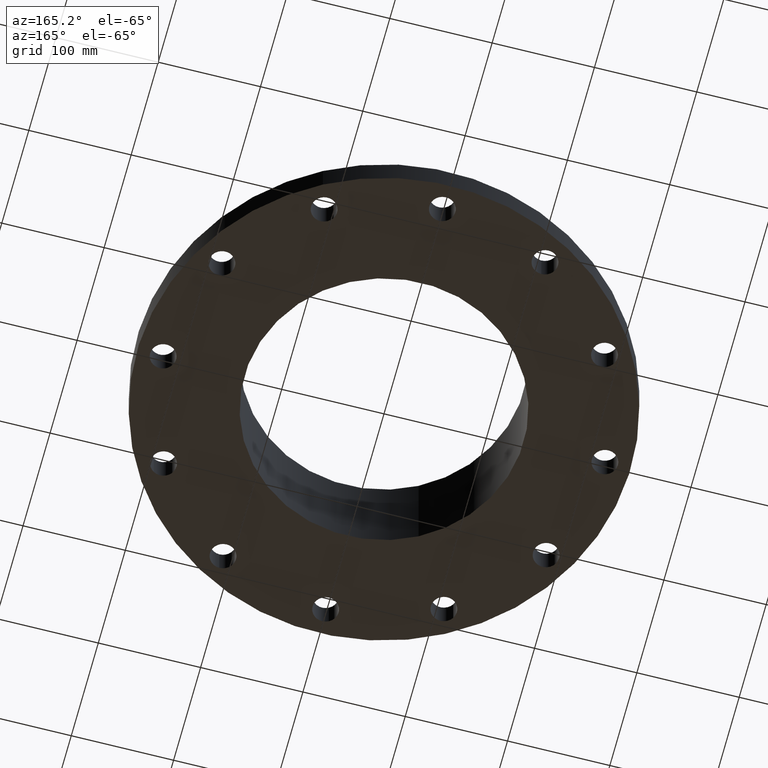
[diagram: clean part render]
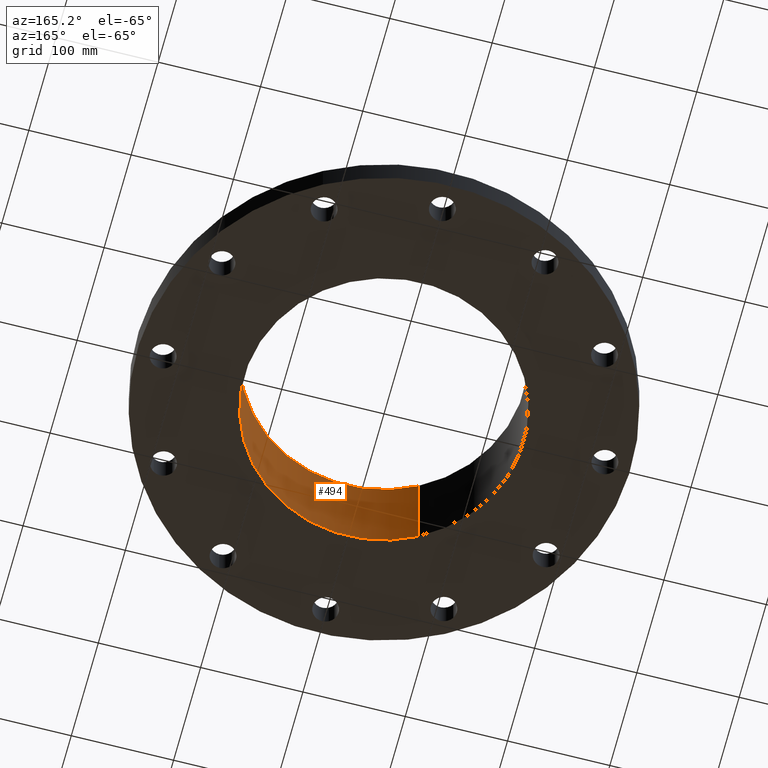
[diagram: same view with one face highlighted and labeled with its STEP entity id]
A machine part, auxiliary view. The second image highlights one B-rep face of the part: STEP entity #494.
In plain terms, the highlighted cylindrical surface (partial cylindrical patch) has radius 136.525 mm, axis along (0, 0, -1).
Its self-contained STEP definition (entity closure, byte-faithful):
#405=AXIS2_PLACEMENT_3D('Circle Axis2P3D',#403,#404,$) ;
#455=AXIS2_PLACEMENT_3D('Cylinder Axis2P3D',#452,#453,#454) ;
#485=AXIS2_PLACEMENT_3D('Circle Axis2P3D',#483,#484,$) ;
#398=CARTESIAN_POINT('Vertex',(-2.57691227001,-4.71700627018,4.44000000002)) ;
#400=CARTESIAN_POINT('Vertex',(2.57691227001,4.71700627018,4.44000000002)) ;
#403=CARTESIAN_POINT('Axis2P3D Location',(0.,0.,4.44000000002)) ;
#452=CARTESIAN_POINT('Axis2P3D Location',(0.,0.,2.22000000001)) ;
#457=CARTESIAN_POINT('Line Origine',(-2.57691227001,-4.71700627018,2.22000000001)) ;
#461=CARTESIAN_POINT('Vertex',(-2.57691227001,-4.71700627018,-2.96525708624E-014)) ;
#468=CARTESIAN_POINT('Vertex',(2.57691227001,4.71700627018,-2.96525708624E-014)) ;
#471=CARTESIAN_POINT('Line Origine',(2.57691227001,4.71700627018,2.22000000001)) ;
#483=CARTESIAN_POINT('Axis2P3D Location',(0.,0.,-2.96525708624E-014)) ;
#404=DIRECTION('Axis2P3D Direction',(0.,0.,-0.0393700787402)) ;
#453=DIRECTION('Axis2P3D Direction',(0.,0.,-0.0393700787402)) ;
#454=DIRECTION('Axis2P3D XDirection',(0.0188750212049,0.0345504945626,0.)) ;
#458=DIRECTION('Vector Direction',(0.,0.,-0.0393700787402)) ;
#472=DIRECTION('Vector Direction',(0.,0.,-0.0393700787402)) ;
#484=DIRECTION('Axis2P3D Direction',(0.,0.,-0.0393700787402)) ;
#459=VECTOR('Line Direction',#458,0.0393700787402) ;
#473=VECTOR('Line Direction',#472,0.0393700787402) ;
#489=ORIENTED_EDGE('',*,*,#407,.F.) ;
#490=ORIENTED_EDGE('',*,*,#475,.T.) ;
#491=ORIENTED_EDGE('',*,*,#487,.T.) ;
#492=ORIENTED_EDGE('',*,*,#463,.F.) ;
#494=ADVANCED_FACE('PartBody',(#493),#456,.F.) ;
#406=CIRCLE('generated circle',#405,5.37500000002) ;
#486=CIRCLE('generated circle',#485,5.37500000002) ;
#456=CYLINDRICAL_SURFACE('generated cylinder',#455,5.37500000002) ;
#407=EDGE_CURVE('',#401,#399,#406,.T.) ;
#463=EDGE_CURVE('',#399,#462,#460,.T.) ;
#475=EDGE_CURVE('',#401,#469,#474,.T.) ;
#487=EDGE_CURVE('',#469,#462,#486,.T.) ;
#488=EDGE_LOOP('',(#489,#490,#491,#492)) ;
#493=FACE_OUTER_BOUND('',#488,.T.) ;
#460=LINE('Line',#457,#459) ;
#474=LINE('Line',#471,#473) ;
#399=VERTEX_POINT('',#398) ;
#401=VERTEX_POINT('',#400) ;
#462=VERTEX_POINT('',#461) ;
#469=VERTEX_POINT('',#468) ;